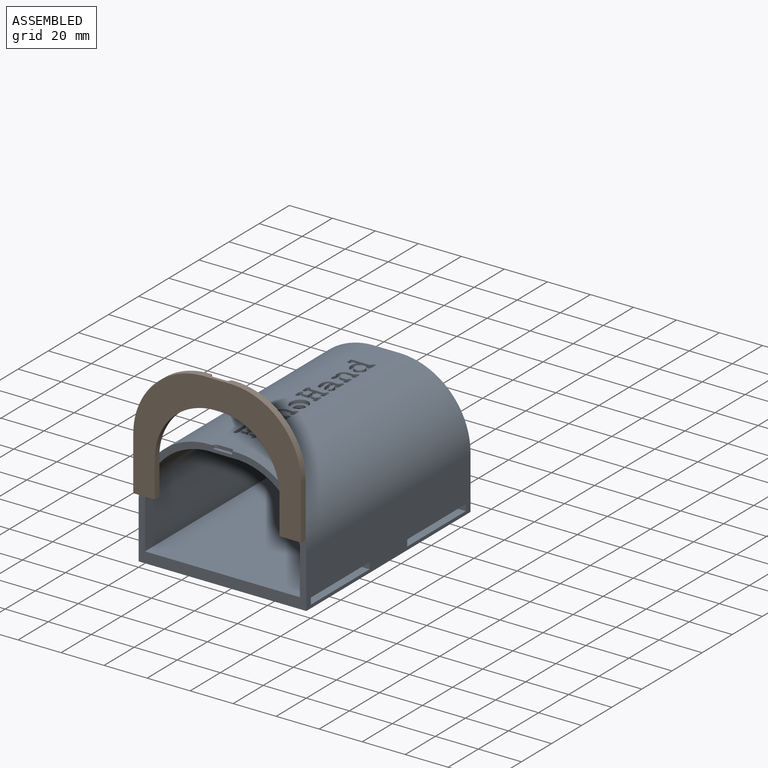
[diagram: assembled view]
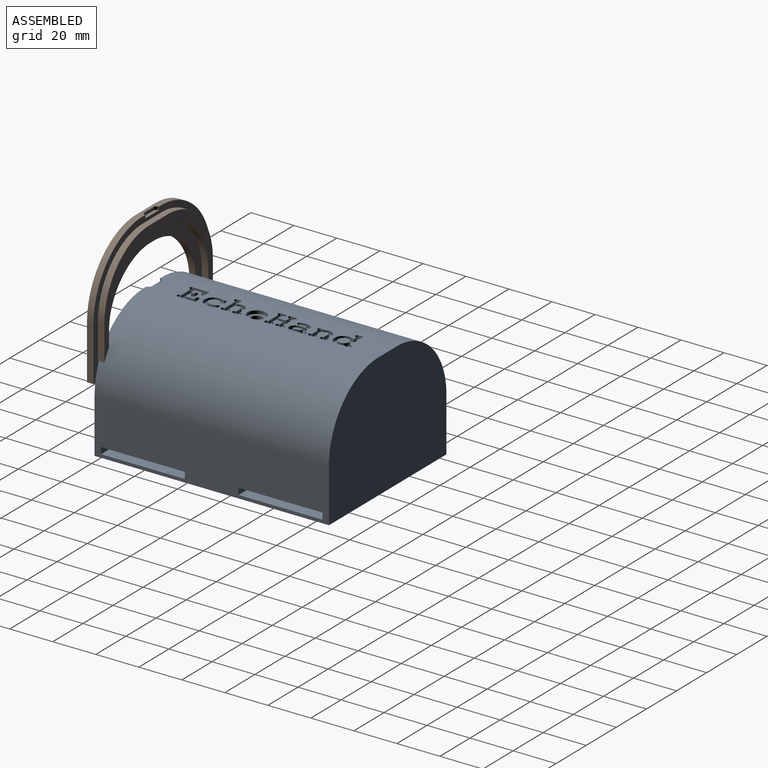
[diagram: assembled view, second angle]
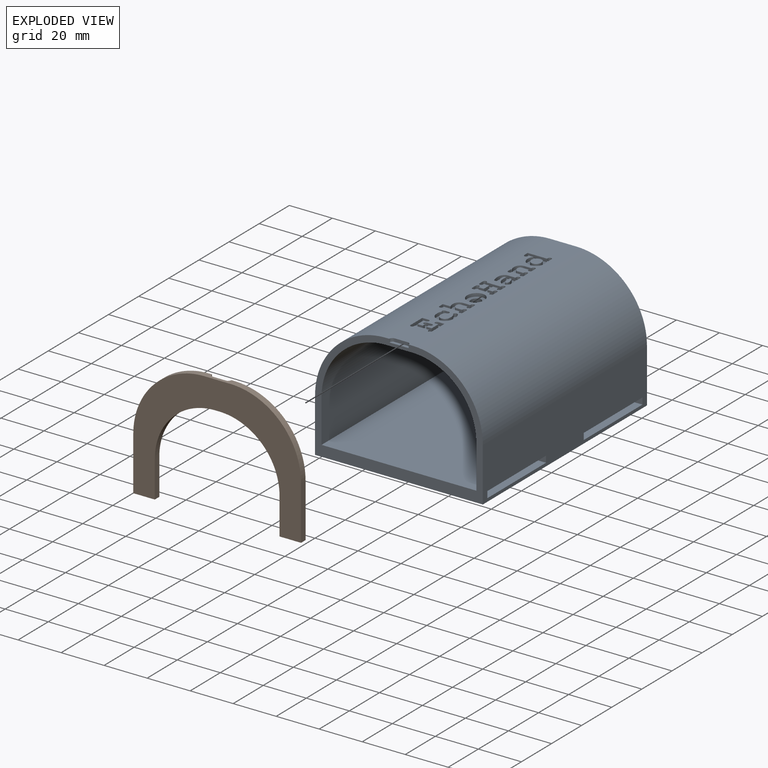
[diagram: exploded view]
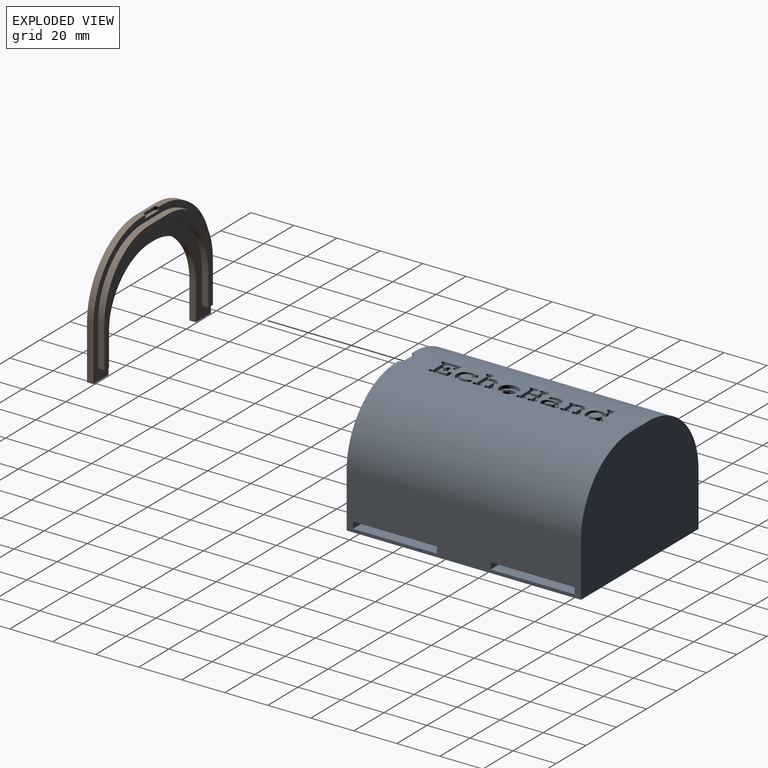
[diagram: exploded view, second angle]
FCSTD DOCUMENT  (FreeCAD 1.0R39319 (Git))
Label: EchoHand_circuit_case_v4
License: All rights reserved
LicenseURL: https://en.wikipedia.org/wiki/All_rights_reserved
objects: Sketcher::SketchObject×10, PartDesign::Pocket×9, PartDesign::Fillet×6, App::FeaturePython×3, Part::Box×2, PartDesign::FeatureBase×2, PartDesign::Pad×2, PartDesign::Body×2, App::Link×2, PartDesign::Point×1, Part::Part2DObjectPython×1, Assembly::JointGroup×1, Assembly::AssemblyObject×1
note: 81 computed .brp shape members not serialized (recipe doc carries the construction recipe); baked Part::Feature solids carry a one-line shape summary decoded from their .brp

FEATURE [Part::Box] Box  label="Cube"
  AttacherType = Attacher::AttachEngine3D
  Height = 58
  Length = 78
  Placement = pos=(-39,-54.5,0) rot=(0,0,1;0rad)
  Width = 109
FEATURE [PartDesign::FeatureBase] BaseFeature
  BaseFeature = -> Box
  Suppressed = false
FEATURE [Sketcher::SketchObject] Sketch
  ArcFitTolerance = 1e-06
  AttachmentSupport = -> [BaseFeature]
  ExternalGeometry = -> [BaseFeature]
  FullyConstrained = true
  MakeInternals = false
  MapMode = 5
  Placement = pos=(0,0,0) rot=(1,0,0;1.5708rad)
  sketch-geometry (6):
    g0: LineSegment [constr] StartX=39 StartY=58 StartZ=0 EndX=39 EndY=0 EndZ=0
    g1: LineSegment StartX=3 StartY=55 StartZ=0 EndX=3 EndY=5 EndZ=0
    g2: LineSegment StartX=3 StartY=5 StartZ=0 EndX=75 EndY=5 EndZ=0
    g3: LineSegment StartX=75 StartY=5 StartZ=0 EndX=75 EndY=55 EndZ=0
    g4: LineSegment StartX=75 StartY=55 StartZ=0 EndX=3 EndY=55 EndZ=0
    g5: GeomPoint [constr] X=39 Y=30 Z=0
  constraints (16):
    c: Symmetric(g-3,g-3,g0)
    c: Symmetric(g-4,g-4,g0)
    c: DistanceX(g-4,g-4) = 78
    c: Coincident(g1,g2)
    c: Coincident(g2,g3)
    c: Coincident(g3,g4)
    c: Coincident(g4,g1)
    c: Vertical(g1)
    c: Vertical(g3)
    c: Horizontal(g2)
    c: Horizontal(g4)
    c: Symmetric(g3,g1,g5)
    c: Distance(g1,g3) = 72
    c: PointOnObject(g5,g0)
    c: Distance(g-3,g4) = 3
    c: Distance(g-4,g2) = 5
FEATURE [PartDesign::Pocket] Pocket
  BaseFeature = -> BaseFeature
  Direction = (0,1,-2e-16)
  Length = 0
  Length2 = 5
  Offset = -3
  Profile = -> Sketch
  ReferenceAxis = -> Sketch [N_Axis]
  Refine = true
  Suppressed = false
  Type = 3
  UpToFace = -> BaseFeature [Face4]
FEATURE [PartDesign::Point] DatumPoint
  AttacherType = Attacher::AttachEnginePoint
  AttachmentSupport = -> [Pocket]
  MapMode = 37
  Placement = pos=(39,54.5,58) rot=(0,0,1;0rad)
FEATURE [Sketcher::SketchObject] Sketch003
  ArcFitTolerance = 1e-06
  AttachmentSupport = -> [Pocket]
  ExternalGeometry = -> [DatumPoint]
  FullyConstrained = true
  MakeInternals = false
  MapMode = 5
  Placement = pos=(0,0,58) rot=(0,0,1;0rad)
  sketch-geometry (1):
    g0: Circle CenterX=39 CenterY=54.5 CenterZ=0 NormalX=0 NormalY=0 NormalZ=1 AngleXU=0 Radius=5
  constraints (2):
    c: Diameter(g0) = 10
    c: Coincident(g0,g-3)
FEATURE [PartDesign::Pocket] Pocket001
  BaseFeature = -> Pocket
  Direction = (0,0,-1)
  Length = 0
  Length2 = 5
  Profile = -> Sketch003
  ReferenceAxis = -> Sketch003 [N_Axis]
  Refine = true
  Suppressed = true
  Type = 3
  UpToFace = -> Pocket [?Face8]
FEATURE [Sketcher::SketchObject] Sketch005
  ArcFitTolerance = 1e-06
  AttachmentSupport = -> [Pocket001]
  FullyConstrained = true
  MakeInternals = false
  MapMode = 5
  Placement = pos=(0,0,0) rot=(1,0,0;1.5708rad)
  sketch-geometry (4):
    g0: LineSegment StartX=0 StartY=0 StartZ=0 EndX=0 EndY=-2 EndZ=0
    g1: LineSegment StartX=0 StartY=-2 StartZ=0 EndX=78 EndY=-2 EndZ=0
    g2: LineSegment StartX=78 StartY=-2 StartZ=0 EndX=78 EndY=0 EndZ=0
    g3: LineSegment StartX=78 StartY=0 StartZ=0 EndX=0 EndY=0 EndZ=0
  constraints (11):
    c: Coincident(g0,g1)
    c: Coincident(g1,g2)
    c: Coincident(g2,g3)
    c: Coincident(g3,g0)
    c: Vertical(g0)
    c: Vertical(g2)
    c: Horizontal(g1)
    c: Horizontal(g3)
    c: Distance(g0,g2) = 78
    c: Distance(g1,g3) = 2
    c: Coincident(g0,g-1)
FEATURE [PartDesign::Pad] Pad
  BaseFeature = -> Pocket001
  Direction = (0,-1,2e-16)
  Length = 10
  Length2 = 10
  Profile = -> Sketch005
  ReferenceAxis = -> Sketch005 [N_Axis]
  Refine = true
  Suppressed = true
  Type = 3
  UpToFace = -> Pocket001 [Face4]
FEATURE [Sketcher::SketchObject] Sketch006
  ArcFitTolerance = 1e-06
  AttachmentSupport = -> [Pad]
  ExternalGeometry = -> [Pad]
  FullyConstrained = true
  MakeInternals = false
  MapMode = 5
  Placement = pos=(78,0,0) rot=(0.57735,0.57735,0.57735;2.0944rad)
  sketch-geometry (8):
    g0: LineSegment StartX=67 StartY=1.5 StartZ=0 EndX=106 EndY=1.5 EndZ=0
    g1: LineSegment StartX=106 StartY=1.5 StartZ=0 EndX=106 EndY=4.5 EndZ=0
    g2: LineSegment StartX=106 StartY=4.5 StartZ=0 EndX=67 EndY=4.5 EndZ=0
    g3: LineSegment StartX=67 StartY=4.5 StartZ=0 EndX=67 EndY=1.5 EndZ=0
    g4: LineSegment StartX=3 StartY=1.5 StartZ=0 EndX=42 EndY=1.5 EndZ=0
    g5: LineSegment StartX=42 StartY=1.5 StartZ=0 EndX=42 EndY=4.5 EndZ=0
    g6: LineSegment StartX=42 StartY=4.5 StartZ=0 EndX=3 EndY=4.5 EndZ=0
    g7: LineSegment StartX=3 StartY=4.5 StartZ=0 EndX=3 EndY=1.5 EndZ=0
  constraints (24):
    c: Coincident(g0,g1)
    c: Coincident(g1,g2)
    c: Coincident(g2,g3)
    c: Coincident(g3,g0)
    c: Horizontal(g0)
    c: Horizontal(g2)
    c: Vertical(g1)
    c: Vertical(g3)
    c: Distance(g1,g3) = 39
    c: Distance(g0,g2) = 3
    c: Coincident(g4,g5)
    c: Coincident(g5,g6)
    c: Coincident(g6,g7)
    c: Coincident(g7,g4)
    c: Horizontal(g4)
    c: Horizontal(g6)
    c: Vertical(g5)
    c: Vertical(g7)
    c: Distance(g5,g7) = 39
    c: Distance(g4,g6) = 3
    c: Distance(g-4,g7) = 3
    c: Distance(g-1,g4) = 1.5
    c: Distance(g-5,g1) = 3
    c: Distance(g-1,g0) = 1.5
FEATURE [PartDesign::Pocket] Pocket002
  BaseFeature = -> Pad
  Direction = (-1,0,0)
  Length = 5
  Length2 = 5
  Profile = -> Sketch006
  ReferenceAxis = -> Sketch006 [N_Axis]
  Refine = true
  Suppressed = false
  Type = 1
FEATURE [PartDesign::Fillet] Fillet
  Base = -> Pocket002 [Edge41,Edge43]
  BaseFeature = -> Pocket002
  Radius = 30
  Refine = true
  SupportTransform = false
  Suppressed = false
  UseAllEdges = false
FEATURE [PartDesign::Fillet] Fillet001
  Base = -> Fillet [Edge26,Edge36]
  BaseFeature = -> Fillet
  Radius = 33
  Refine = true
  SupportTransform = false
  Suppressed = false
  UseAllEdges = false
FEATURE [Part::Box] Box001  label="Cube001"
  AttacherType = Attacher::AttachEngine3D
  Height = 3
  Length = 78
  Placement = pos=(0,-85,0) rot=(0,0,1;0rad)
  Width = 58
FEATURE [PartDesign::FeatureBase] BaseFeature001
  BaseFeature = -> Box001
  Suppressed = false
FEATURE [Sketcher::SketchObject] Sketch008
  ArcFitTolerance = 1e-06
  AttachmentSupport = -> [BaseFeature001]
  ExternalGeometry = -> [BaseFeature001]
  FullyConstrained = true
  MakeInternals = false
  MapMode = 5
  Placement = pos=(0,0,3) rot=(0,0,1;0rad)
  sketch-geometry (6):
    g0: LineSegment [constr] StartX=39 StartY=58 StartZ=0 EndX=39 EndY=0 EndZ=0
    g1: LineSegment StartX=3 StartY=5.5 StartZ=0 EndX=75 EndY=5.5 EndZ=0
    g2: LineSegment StartX=75 StartY=5.5 StartZ=0 EndX=75 EndY=55 EndZ=0
    g3: LineSegment StartX=75 StartY=55 StartZ=0 EndX=3 EndY=55 EndZ=0
    g4: LineSegment StartX=3 StartY=55 StartZ=0 EndX=3 EndY=5.5 EndZ=0
    g5: GeomPoint [constr] X=39 Y=30.25 Z=0
  constraints (17):
    c: Symmetric(g-3,g-3,g0)
    c: Symmetric(g-4,g-4,g0)
    c: DistanceX(g-4,g-4) = 78
    c: DistanceY(g-5,g-5) = 58
    c: Coincident(g1,g2)
    c: Coincident(g2,g3)
    c: Coincident(g3,g4)
    c: Coincident(g4,g1)
    c: Horizontal(g1)
    c: Horizontal(g3)
    c: Vertical(g2)
    c: Vertical(g4)
    c: Symmetric(g3,g1,g5)
    c: Distance(g2,g4) = 72
    c: Distance(g1,g3) = 49.5
    c: PointOnObject(g5,g0)
    c: Distance(g-3,g3) = 3
FEATURE [PartDesign::Pad] Pad001
  BaseFeature = -> BaseFeature001
  Direction = (0,0,1)
  Length = 3
  Length2 = 10
  Profile = -> Sketch008
  ReferenceAxis = -> Sketch008 [N_Axis]
  Refine = true
  Suppressed = false
  Type = 0
FEATURE [Sketcher::SketchObject] Sketch009
  ArcFitTolerance = 1e-06
  AttachmentSupport = -> [Pad001]
  ExternalGeometry = -> [Pad001]
  FullyConstrained = true
  MakeInternals = false
  MapMode = 5
  Placement = pos=(0,0,6) rot=(0,0,1;0rad)
  sketch-geometry (6):
    g0: LineSegment [constr] StartX=39 StartY=55 StartZ=0 EndX=39 EndY=5.5 EndZ=0
    g1: LineSegment StartX=6 StartY=3 StartZ=0 EndX=72 EndY=3 EndZ=0
    g2: LineSegment StartX=72 StartY=3 StartZ=0 EndX=72 EndY=52 EndZ=0
    g3: LineSegment StartX=72 StartY=52 StartZ=0 EndX=6 EndY=52 EndZ=0
    g4: LineSegment StartX=6 StartY=52 StartZ=0 EndX=6 EndY=3 EndZ=0
    g5: GeomPoint [constr] X=39 Y=27.5 Z=0
  constraints (17):
    c: Symmetric(g-5,g-5,g0)
    c: Symmetric(g-6,g-6,g0)
    c: DistanceY(g-4,g-4) = 49.5
    c: DistanceX(g-5,g-5) = 72
    c: Coincident(g1,g2)
    c: Coincident(g2,g3)
    c: Coincident(g3,g4)
    c: Coincident(g4,g1)
    c: Horizontal(g1)
    c: Horizontal(g3)
    c: Vertical(g2)
    c: Vertical(g4)
    c: Symmetric(g3,g1,g5)
    c: Distance(g2,g4) = 66
    c: Distance(g1,g3) = 49
    c: PointOnObject(g5,g0)
    c: Distance(g-5,g3) = 3
FEATURE [PartDesign::Pocket] Pocket004
  BaseFeature = -> Pad001
  Direction = (0,0,-1)
  Length = 3
  Length2 = 5
  Profile = -> Sketch009
  ReferenceAxis = -> Sketch009 [N_Axis]
  Refine = true
  Suppressed = false
  Type = 0
FEATURE [Sketcher::SketchObject] Sketch011
  ArcFitTolerance = 1e-06
  FullyConstrained = true
  MakeInternals = false
  MapMode = 5
  Placement = pos=(0,0,0) rot=(1,0,0;3.14159rad)
  sketch-geometry (4):
    g0: LineSegment StartX=10 StartY=0 StartZ=0 EndX=10 EndY=-45 EndZ=0
    g1: LineSegment StartX=10 StartY=-45 StartZ=0 EndX=68 EndY=-45 EndZ=0
    g2: LineSegment StartX=68 StartY=-45 StartZ=0 EndX=68 EndY=0 EndZ=0
    g3: LineSegment StartX=68 StartY=0 StartZ=0 EndX=10 EndY=0 EndZ=0
  constraints (12):
    c: Coincident(g0,g1)
    c: Coincident(g1,g2)
    c: Coincident(g2,g3)
    c: Coincident(g3,g0)
    c: Vertical(g0)
    c: Vertical(g2)
    c: Horizontal(g1)
    c: Horizontal(g3)
    c: Distance(g0,g2) = 58
    c: Distance(g1,g3) = 45
    c: PointOnObject(g0,g-1)
    c: Distance(g-3,g2) = 10
FEATURE [PartDesign::Pocket] Pocket005
  BaseFeature = -> Pocket004
  Direction = (0,1e-16,1)
  Length = 5
  Length2 = 5
  Profile = -> Sketch011
  ReferenceAxis = -> Sketch011 [N_Axis]
  Refine = true
  Suppressed = false
  Type = 1
FEATURE [PartDesign::Fillet] Fillet002
  Base = -> Pocket005 [Edge29,Edge32]
  BaseFeature = -> Pocket005
  Radius = 28
  Refine = true
  SupportTransform = false
  Suppressed = false
  UseAllEdges = false
FEATURE [PartDesign::Fillet] Fillet003
  Base = -> Fillet002 [Edge45,Edge48]
  BaseFeature = -> Fillet002
  Radius = 32
  Refine = true
  SupportTransform = false
  Suppressed = false
  UseAllEdges = false
FEATURE [PartDesign::Fillet] Fillet004
  Base = -> Fillet003 [Edge34,Edge30]
  BaseFeature = -> Fillet003
  Radius = 30
  Refine = true
  SupportTransform = false
  Suppressed = false
  UseAllEdges = false
FEATURE [PartDesign::Fillet] Fillet005
  Base = -> Fillet004 [Edge56,Edge61]
  BaseFeature = -> Fillet004
  Radius = 33
  Refine = true
  SupportTransform = false
  Suppressed = false
  UseAllEdges = false
FEATURE [Sketcher::SketchObject] Sketch013
  ArcFitTolerance = 1e-06
  AttachmentSupport = -> [Fillet005]
  ExternalGeometry = -> [Fillet005]
  FullyConstrained = true
  MakeInternals = false
  MapMode = 5
  Placement = pos=(0,58,0) rot=(0,0.707107,0.707107;3.14159rad)
  sketch-geometry (7):
    g0: ArcOfCircle CenterX=-42 CenterY=3 CenterZ=0 NormalX=0 NormalY=0 NormalZ=1 AngleXU=0 Radius=1.5 StartAngle=1.5708 EndAngle=4.71239
    g1: ArcOfCircle CenterX=-36 CenterY=3 CenterZ=0 NormalX=0 NormalY=0 NormalZ=1 AngleXU=0 Radius=1.5 StartAngle=4.71239 EndAngle=7.85398
    g2: LineSegment StartX=-42 StartY=4.5 StartZ=0 EndX=-36 EndY=4.5 EndZ=0
    g3: LineSegment StartX=-42 StartY=1.5 StartZ=0 EndX=-36 EndY=1.5 EndZ=0
    g4: LineSegment [constr] StartX=-42 StartY=4.5 StartZ=0 EndX=-36 EndY=1.5 EndZ=0
    g5: LineSegment [constr] StartX=-42 StartY=1.5 StartZ=0 EndX=-36 EndY=4.5 EndZ=0
    g6: GeomPoint [constr] X=-39 Y=3 Z=0
  constraints (14):
    c: Tangent(g0,g2) = 1.5708
    c: Tangent(g0,g3) = -1.5708
    c: Tangent(g1,g2) = 1.5708
    c: Tangent(g1,g3) = -1.5708
    c: Equal(g0,g1)
    c: Horizontal(g3)
    c: Radius(g0) = 1.5
    c: Coincident(g4,g0)
    c: Coincident(g4,g1)
    c: Coincident(g5,g0)
    c: Coincident(g5,g1)
    c: Symmetric(g4,g4,g6)
    c: Symmetric(g-4,g-4,g6)
    c: DistanceX(g0,g1) = 6
FEATURE [PartDesign::Pocket] Pocket006
  BaseFeature = -> Fillet005
  Direction = (0,-1,2e-16)
  Length = 1.5
  Length2 = 5
  Profile = -> Sketch013
  ReferenceAxis = -> Sketch013 [N_Axis]
  Refine = true
  Suppressed = false
  Type = 0
FEATURE [PartDesign::Body] Body001  label="Lid Body"
  AllowCompound = false
  BaseFeature = -> Box001
  Group = -> [BaseFeature001,Sketch008,Pad001,Sketch009,Pocket004,Sketch011,Pocket005,Fillet002,Fillet003,Fillet004,Fillet005,Sketch013,Pocket006]
  Origin = -> Origin001
  Placement = pos=(0,-100,0) rot=(0,0,1;0rad)
  Tip = -> Pocket006
FEATURE [Part::Part2DObjectPython] ShapeString  # Draft 2D object (typed FeaturePython)
  AttachmentOffset = pos=(0,0,0) rot=(0,0,1;1.5708rad)
  AttachmentSupport = -> [Fillet001]
  FontFile = <path>
  Fuse = false
  Justification = 4
  JustificationReference = 0
  KeepLeftMargin = false
  MakeFace = true
  MapMode = 45
  ObliqueAngle = 0
  Placement = pos=(39,54.5,58) rot=(0,0,1;1.5708rad)
  ScaleToSize = true
  Size = 10
  String = EchoHand
  Tracking = 0
FEATURE [App::Link] Box_Body  label="Box Body001"
  LinkedObject = -> Body
FEATURE [App::FeaturePython] GroundedJoint  # Assembly grounded joint (typed FeaturePython)
  ObjectToGround = -> Box_Body
FEATURE [App::Link] Lid_Body  label="Lid Body001"
  LinkPlacement = pos=(78,-3.49992,30) rot=(0,0.707107,0.707107;3.14159rad)
  LinkedObject = -> Body001
  Placement = pos=(78,-3.49992,30) rot=(0,0.707107,0.707107;3.14159rad)
FEATURE [PartDesign::Pocket] Pocket007
  BaseFeature = -> Fillet001
  Direction = (0,0,-1)
  Length = 1.5
  Length2 = 5
  Profile = -> ShapeString
  ReferenceAxis = -> ShapeString [N_Axis]
  Refine = true
  Suppressed = false
  Type = 0
FEATURE [Sketcher::SketchObject] Sketch014
  ArcFitTolerance = 1e-06
  AttachmentSupport = -> [Pocket007]
  ExternalGeometry = -> [Pocket007]
  FullyConstrained = false
  MakeInternals = false
  MapMode = 5
  Placement = pos=(0,0,58) rot=(0,0,1;0rad)
  sketch-geometry (8):
    g0: ArcOfCircle CenterX=40.3231 CenterY=49.8701 CenterZ=0 NormalX=0 NormalY=0 NormalZ=1 AngleXU=0 Radius=2.02399 StartAngle=1.53731 EndAngle=2.35217
    g1: ArcOfCircle CenterX=40.3946 CenterY=50.0995 CenterZ=0 NormalX=0 NormalY=0 NormalZ=1 AngleXU=0 Radius=1.79353 StartAngle=0.603433 EndAngle=1.57288
    g2: ArcOfCircle CenterX=40.0103 CenterY=49.3716 CenterZ=0 NormalX=0 NormalY=0 NormalZ=1 AngleXU=0 Radius=2.55163 StartAngle=6.21692 EndAngle=7.03659
    g3: ArcOfCircle CenterX=40.2676 CenterY=49.4562 CenterZ=0 NormalX=0 NormalY=0 NormalZ=1 AngleXU=0 Radius=2.30273 StartAngle=2.20796 EndAngle=3.25191
    g4: ArcOfCircle CenterX=40.3857 CenterY=49.0239 CenterZ=0 NormalX=0 NormalY=0 NormalZ=1 AngleXU=0 Radius=2.41345 StartAngle=3.06747 EndAngle=3.94432
    g5: ArcOfCircle CenterX=40.3307 CenterY=48.6146 CenterZ=0 NormalX=0 NormalY=0 NormalZ=1 AngleXU=0 Radius=2.09516 StartAngle=3.82721 EndAngle=4.74505
    g6: ArcOfCircle CenterX=40.3987 CenterY=48.3062 CenterZ=0 NormalX=0 NormalY=0 NormalZ=1 AngleXU=0 Radius=1.78567 StartAngle=4.7126 EndAngle=5.68206
    g7: ArcOfCircle CenterX=39.9383 CenterY=49.0671 CenterZ=0 NormalX=0 NormalY=0 NormalZ=1 AngleXU=0 Radius=2.62158 StartAngle=5.54157 EndAngle=6.33491
  constraints (17):
    c: Coincident(g1,g0)
    c: Coincident(g1,g-10)
    c: Coincident(g2,g1)
    c: Coincident(g2,g-10)
    c: Coincident(g0,g-4)
    c: Coincident(g0,g-5)
    c: Coincident(g3,g-6)
    c: Coincident(g3,g0)
    c: Coincident(g4,g3)
    c: Coincident(g4,g-7)
    c: Coincident(g5,g4)
    c: Coincident(g5,g-8)
    c: Coincident(g6,g-9)
    c: Coincident(g6,g5)
    c: Coincident(g7,g6)
    c: PointOnObject(g7,g3)
    c: Coincident(g7,g2)
FEATURE [PartDesign::Pocket] Pocket008
  BaseFeature = -> Pocket007
  Direction = (0,0,-1)
  Length = 0
  Length2 = 5
  Profile = -> Sketch014
  ReferenceAxis = -> Sketch014 [N_Axis]
  Refine = true
  Suppressed = false
  Type = 3
  UpToFace = -> Pocket007 [Face8]
FEATURE [Sketcher::SketchObject] Sketch015
  ArcFitTolerance = 1e-06
  AttachmentSupport = -> [Pocket008]
  ExternalGeometry = -> [Pocket008]
  FullyConstrained = true
  MakeInternals = false
  MapMode = 5
  Placement = pos=(0,0,58) rot=(0,0,1;0rad)
  sketch-geometry (7):
    g0: ArcOfCircle CenterX=36 CenterY=2.1e-15 CenterZ=0 NormalX=0 NormalY=0 NormalZ=1 AngleXU=0 Radius=1.5 StartAngle=1.5708 EndAngle=4.71239
    g1: ArcOfCircle CenterX=42 CenterY=2.3e-15 CenterZ=0 NormalX=0 NormalY=0 NormalZ=1 AngleXU=0 Radius=1.5 StartAngle=4.71239 EndAngle=7.85398
    g2: LineSegment StartX=36 StartY=1.5 StartZ=0 EndX=42 EndY=1.5 EndZ=0
    g3: LineSegment StartX=36 StartY=-1.5 StartZ=0 EndX=42 EndY=-1.5 EndZ=0
    g4: LineSegment [constr] StartX=36 StartY=1.5 StartZ=0 EndX=42 EndY=-1.5 EndZ=0
    g5: LineSegment [constr] StartX=36 StartY=-1.5 StartZ=0 EndX=42 EndY=1.5 EndZ=0
    g6: GeomPoint [constr] X=39 Y=0 Z=0
  constraints (14):
    c: Tangent(g0,g2) = 1.5708
    c: Tangent(g0,g3) = -1.5708
    c: Tangent(g1,g2) = 1.5708
    c: Tangent(g1,g3) = -1.5708
    c: Equal(g0,g1)
    c: Horizontal(g3)
    c: Distance(g0,g1) = 6
    c: Radius(g0) = 1.5
    c: Coincident(g4,g0)
    c: Coincident(g4,g1)
    c: Coincident(g5,g0)
    c: Coincident(g5,g1)
    c: Symmetric(g4,g4,g6)
    c: Symmetric(g-3,g-3,g6)
FEATURE [PartDesign::Pocket] Pocket009
  BaseFeature = -> Pocket008
  Direction = (0,0,-1)
  Length = 1.5
  Length2 = 5
  Profile = -> Sketch015
  ReferenceAxis = -> Sketch015 [N_Axis]
  Refine = true
  Suppressed = false
  Type = 0
FEATURE [PartDesign::Body] Body  label="Box Body"
  AllowCompound = false
  BaseFeature = -> Box
  Group = -> [BaseFeature,Sketch,Pocket,DatumPoint,Sketch003,Pocket001,Sketch005,Pad,Sketch006,Pocket002,Fillet,Fillet001,ShapeString,Pocket007,Sketch014,Pocket008,Sketch015,Pocket009]
  Origin = -> Origin
  Tip = -> Pocket009
FEATURE [App::FeaturePython] Joint  label="Perpendicular"  # Assembly joint (typed FeaturePython)
  Activated = true
  AngleMax = 0
  AngleMin = 0
  Detach1 = false
  Detach2 = false
  Distance = 0
  Distance2 = 0
  EnableAngleMax = false
  EnableAngleMin = false
  EnableLengthMax = false
  EnableLengthMin = false
  JointType = 7 (Perpendicular)
  LengthMax = 0
  LengthMin = 0
  Reference1 = -> Assembly [Box_Body.,Box_Body.]
  Reference2 = -> Assembly [Lid_Body.,Lid_Body.]
FEATURE [App::FeaturePython] Joint001  label="Slider"  # Assembly joint (typed FeaturePython)
  Activated = true
  AngleMax = 0
  AngleMin = 0
  Detach1 = false
  Detach2 = false
  Distance = 0
  Distance2 = 0
  EnableAngleMax = false
  EnableAngleMin = false
  EnableLengthMax = true
  EnableLengthMin = true
  JointType = 3 (Slider)
  LengthMax = 0
  LengthMin = -100
  Offset2 = pos=(0,0,0) rot=(0,0,-1;1.5708rad)
  Placement1 = pos=(45,1.22e-14,55) rot=(0.57735,0.57735,0.57735;4.18879rad)
  Placement2 = pos=(33,25,4.5) rot=(0.707107,-0.707107,0;3.14159rad)
  Reference1 = -> Assembly [Box_Body.Face1,Box_Body.Vertex11]
  Reference2 = -> Assembly [Lid_Body.Face18,Lid_Body.Face18]
FEATURE [Assembly::JointGroup] Joints
  Group = -> [GroundedJoint,Joint,Joint001]
FEATURE [Assembly::AssemblyObject] Assembly
  Group = -> [Joints,Box_Body,GroundedJoint,Lid_Body,Joint,Joint001]
  Origin = -> Origin002
  Type = Assembly
note: 1 file-system path scrubbed to <path> (originals preserved in the JSON sidecar)
